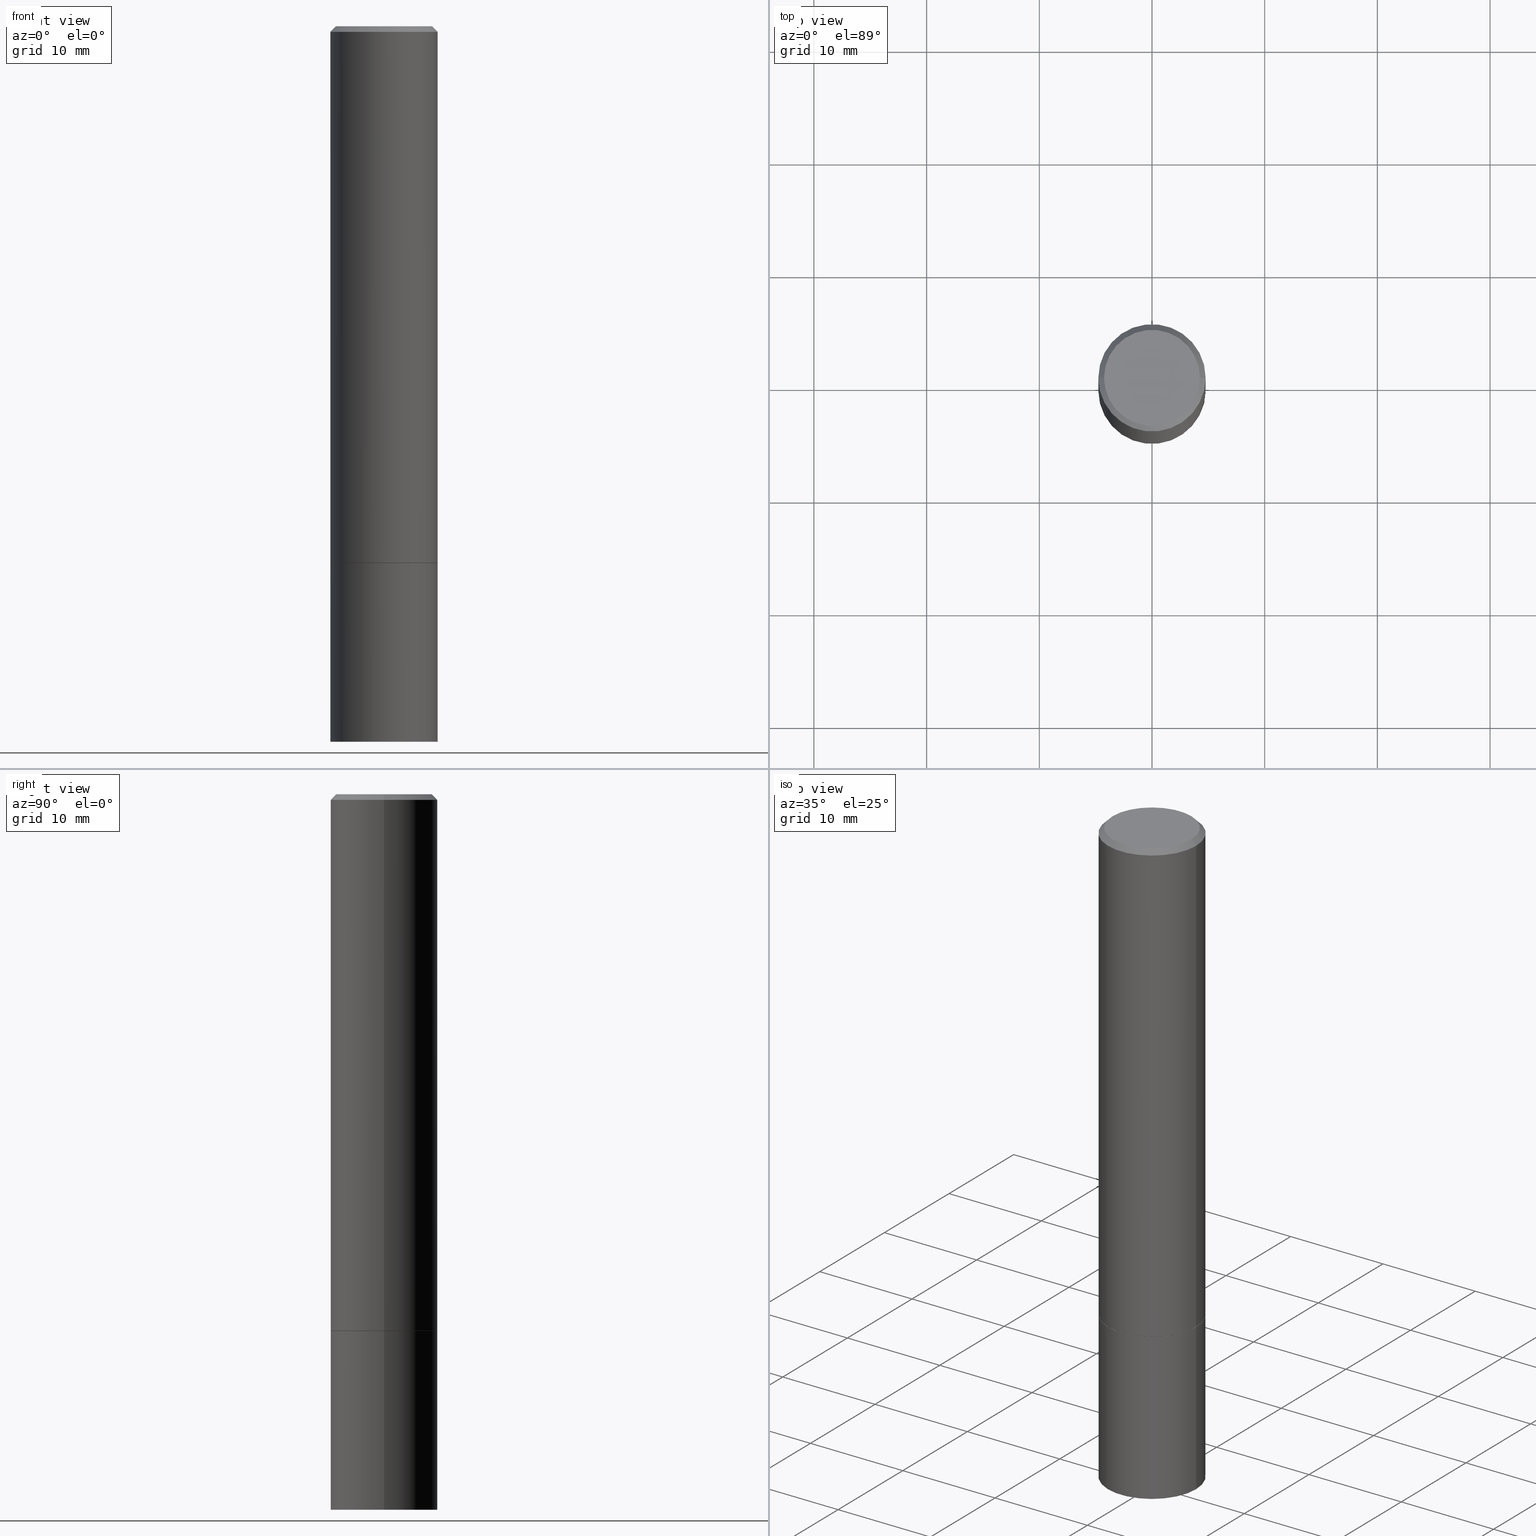
[diagram: canonical four-view strip — front | top / right | iso, engineering-drawing reading convention]
A machine part, canonical four-view strip (front | top / right | iso — engineering-drawing reading convention). The complete STEP part file that produces these views, byte-faithful:
ISO-10303-21;
HEADER;
FILE_DESCRIPTION (( 'STEP AP203' ),
    '1' );
FILE_NAME ('32662.STEP',
    '2022-04-27T15:46:39',
    ( '' ),
    ( '' ),
    'SwSTEP 2.0',
    'SolidWorks 2022',
    '' );
FILE_SCHEMA (( 'CONFIG_CONTROL_DESIGN' ));
ENDSEC;

DATA;
#1 = DIRECTION ( 'NONE',  ( -2.445468806185136597E-29, 3.491481338843145583E-15, 1.000000000000000000 ) ) ;
#2 = CARTESIAN_POINT ( 'NONE',  ( 6.105668424814365750E-29, -8.717276340833150111E-15, -2.496727175325960779 ) ) ;
#3 = EDGE_CURVE ( 'NONE', #307, #189, #246, .T. ) ;
#4 = EDGE_LOOP ( 'NONE', ( #146, #226, #37 ) ) ;
#5 = AXIS2_PLACEMENT_3D ( 'NONE', #350, #240, #379 ) ;
#6 = ORIENTED_EDGE ( 'NONE', *, *, #381, .T. ) ;
#7 = LINE ( 'NONE', #125, #324 ) ;
#8 = CALENDAR_DATE ( 2022, 27, 4 ) ;
#9 = DIRECTION ( 'NONE',  ( -2.445468806185136877E-29, 3.491481338843145188E-15, 1.000000000000000000 ) ) ;
#10 = AXIS2_PLACEMENT_3D ( 'NONE', #115, #242, #330 ) ;
#11 = COORDINATED_UNIVERSAL_TIME_OFFSET ( 5, 0, .BEHIND. ) ;
#12 =( NAMED_UNIT ( * ) SI_UNIT ( $, .STERADIAN. ) SOLID_ANGLE_UNIT ( ) );
#13 = DIRECTION ( 'NONE',  ( 1.000000000000000000, -6.982962677686265133E-15, 0.000000000000000000 ) ) ;
#14 = CYLINDRICAL_SURFACE ( 'NONE', #179, 0.1875000000000000278 ) ;
#15 = EDGE_LOOP ( 'NONE', ( #81, #32, #95 ) ) ;
#16 = CARTESIAN_POINT ( 'NONE',  ( 0.000000000000000000, 0.000000000000000000, 0.000000000000000000 ) ) ;
#17 = VECTOR ( 'NONE', #136, 39.37007874015748143 ) ;
#18 = EDGE_CURVE ( 'NONE', #119, #106, #156, .T. ) ;
#19 = CARTESIAN_POINT ( 'NONE',  ( 4.585254011597131119E-29, -6.546527510330898707E-15, -1.875000000000000000 ) ) ;
#20 = ORIENTED_EDGE ( 'NONE', *, *, #144, .F. ) ;
#21 = APPROVAL ( #103, 'UNSPECIFIED' ) ;
#22 = DIRECTION ( 'NONE',  ( 1.000000000000000000, -6.982962677686265922E-15, 4.876176775795935793E-29 ) ) ;
#23 = VERTEX_POINT ( 'NONE', #131 ) ;
#24 = DIRECTION ( 'NONE',  ( -2.445468806185136597E-29, 3.491481338843145583E-15, 1.000000000000000000 ) ) ;
#25 = AXIS2_PLACEMENT_3D ( 'NONE', #19, #138, #111 ) ;
#26 = DIRECTION ( 'NONE',  ( -0.7071067811865466846, 2.468850131082247989E-15, -0.7071067811865483499 ) ) ;
#27 = CYLINDRICAL_SURFACE ( 'NONE', #44, 0.1875000000000000278 ) ;
#28 = AXIS2_PLACEMENT_3D ( 'NONE', #258, #251, #231 ) ;
#29 = CARTESIAN_POINT ( 'NONE',  ( 0.000000000000000000, 0.000000000000000000, 0.000000000000000000 ) ) ;
#30 = EDGE_CURVE ( 'NONE', #23, #307, #224, .T. ) ;
#31 = AXIS2_PLACEMENT_3D ( 'NONE', #188, #1, #113 ) ;
#32 = ORIENTED_EDGE ( 'NONE', *, *, #274, .T. ) ;
#33 = EDGE_LOOP ( 'NONE', ( #169, #91 ) ) ;
#34 = ORIENTED_EDGE ( 'NONE', *, *, #289, .T. ) ;
#35 = DATE_TIME_ROLE ( 'classification_date' ) ;
#36 = PERSON_AND_ORGANIZATION_ROLE ( 'design_owner' ) ;
#37 = ORIENTED_EDGE ( 'NONE', *, *, #381, .F. ) ;
#38 = EDGE_CURVE ( 'NONE', #260, #171, #7, .T. ) ;
#39 = DATE_AND_TIME ( #132, #190 ) ;
#40 = DIRECTION ( 'NONE',  ( -2.445468806185136597E-29, 3.491481338843145583E-15, 1.000000000000000000 ) ) ;
#41 = PERSON_AND_ORGANIZATION ( #183, #236 ) ;
#42 = MECHANICAL_CONTEXT ( 'NONE', #313, 'mechanical' ) ;
#43 = DATE_AND_TIME ( #133, #225 ) ;
#44 = AXIS2_PLACEMENT_3D ( 'NONE', #29, #244, #148 ) ;
#45 = APPROVAL ( #168, 'UNSPECIFIED' ) ;
#46 = CARTESIAN_POINT ( 'NONE',  ( 0.000000000000000000, 0.000000000000000000, 0.000000000000000000 ) ) ;
#47 = DIRECTION ( 'NONE',  ( 1.000000000000000000, -6.982962677686266711E-15, 4.876176775795935793E-29 ) ) ;
#48 = VERTEX_POINT ( 'NONE', #2 ) ;
#49 = DIRECTION ( 'NONE',  ( -2.445468806185136597E-29, 3.491481338843145583E-15, 1.000000000000000000 ) ) ;
#50 = CIRCLE ( 'NONE', #255, 0.1865000000000000546 ) ;
#51 = CARTESIAN_POINT ( 'NONE',  ( 0.000000000000000000, 0.000000000000000000, 0.000000000000000000 ) ) ;
#52 = FACE_OUTER_BOUND ( 'NONE', #15, .T. ) ;
#53 = SECURITY_CLASSIFICATION ( '', '', #94 ) ;
#54 = DIRECTION ( 'NONE',  ( -1.000000000000000000, 6.982962677686268288E-15, 0.000000000000000000 ) ) ;
#55 = VECTOR ( 'NONE', #234, 39.37007874015748143 ) ;
#56 = PLANE ( 'NONE',  #98 ) ;
#57 = FACE_OUTER_BOUND ( 'NONE', #90, .T. ) ;
#58 = ADVANCED_FACE ( 'NONE', ( #250 ), #166, .F. ) ;
#59 = PRODUCT_DEFINITION_FORMATION_WITH_SPECIFIED_SOURCE ( 'ANY', '', #216, .NOT_KNOWN. ) ;
#60 = AXIS2_PLACEMENT_3D ( 'NONE', #116, #303, #147 ) ;
#61 = CARTESIAN_POINT ( 'NONE',  ( 0.1875000000000009992, -1.001504672169003342E-14, -2.500000000000000000 ) ) ;
#62 = EDGE_CURVE ( 'NONE', #307, #171, #388, .T. ) ;
#63 = DIRECTION ( 'NONE',  ( -1.000000000000000000, 6.982962677686268288E-15, 0.000000000000000000 ) ) ;
#64 = CLOSED_SHELL ( 'NONE', ( #76, #58, #87, #252, #160 ) ) ;
#65 = ORIENTED_EDGE ( 'NONE', *, *, #256, .F. ) ;
#66 = DIRECTION ( 'NONE',  ( -2.445468806185136877E-29, 3.491481338843145188E-15, 1.000000000000000000 ) ) ;
#67 = VERTEX_POINT ( 'NONE', #215 ) ;
#68 = DATE_AND_TIME ( #8, #229 ) ;
#69 = APPROVAL_DATE_TIME ( #68, #45 ) ;
#70 = DATE_AND_TIME ( #291, #184 ) ;
#71 = EDGE_CURVE ( 'NONE', #222, #189, #151, .T. ) ;
#72 = DIRECTION ( 'NONE',  ( 1.000000000000000000, 0.000000000000000000, 0.000000000000000000 ) ) ;
#73 = CC_DESIGN_PERSON_AND_ORGANIZATION_ASSIGNMENT ( #283, #192, ( #53 ) ) ;
#74 = DIRECTION ( 'NONE',  ( -1.000000000000000000, 6.982962677686265133E-15, 0.000000000000000000 ) ) ;
#75 = DIRECTION ( 'NONE',  ( -0.9998476951563912696, 6.920964387254060733E-15, -0.01745240643727649296 ) ) ;
#76 = ADVANCED_FACE ( 'NONE', ( #57 ), #27, .T. ) ;
#77 = EDGE_CURVE ( 'NONE', #260, #23, #50, .T. ) ;
#78 = FACE_OUTER_BOUND ( 'NONE', #335, .T. ) ;
#79 = ORIENTED_EDGE ( 'NONE', *, *, #164, .T. ) ;
#80 = CARTESIAN_POINT ( 'NONE',  ( 0.1874999999999999167, -1.309305502066174219E-15, 9.142831454617375408E-30 ) ) ;
#81 = ORIENTED_EDGE ( 'NONE', *, *, #174, .F. ) ;
#82 = DIRECTION ( 'NONE',  ( 1.000000000000000000, -6.982962677686265922E-15, 4.876176775795935793E-29 ) ) ;
#83 =( GEOMETRIC_REPRESENTATION_CONTEXT ( 3 ) GLOBAL_UNCERTAINTY_ASSIGNED_CONTEXT ( ( #343 ) ) GLOBAL_UNIT_ASSIGNED_CONTEXT ( ( #165, #312, #12 ) ) REPRESENTATION_CONTEXT ( 'NONE', 'WORKASPACE' ) );
#84 = CARTESIAN_POINT ( 'NONE',  ( -0.1874999999999997780, 1.239475875289310330E-15, -0.02000000000000004205 ) ) ;
#85 = VECTOR ( 'NONE', #348, 39.37007874015748143 ) ;
#86 = CARTESIAN_POINT ( 'NONE',  ( 4.585254011597131119E-29, -6.546527510330898707E-15, -1.875000000000000000 ) ) ;
#87 = ADVANCED_FACE ( 'NONE', ( #52 ), #306, .F. ) ;
#88 = CARTESIAN_POINT ( 'NONE',  ( 0.1875000000000000278, -7.855833012397073715E-15, -1.875000000000000000 ) ) ;
#89 = CC_DESIGN_DATE_AND_TIME_ASSIGNMENT ( #70, #284, ( #277 ) ) ;
#90 = EDGE_LOOP ( 'NONE', ( #142, #34, #93, #220 ) ) ;
#91 = ORIENTED_EDGE ( 'NONE', *, *, #245, .F. ) ;
#92 = DATE_AND_TIME ( #253, #345 ) ;
#93 = ORIENTED_EDGE ( 'NONE', *, *, #204, .F. ) ;
#94 = SECURITY_CLASSIFICATION_LEVEL ( 'unclassified' ) ;
#95 = ORIENTED_EDGE ( 'NONE', *, *, #152, .F. ) ;
#96 = ADVANCED_FACE ( 'NONE', ( #118 ), #56, .F. ) ;
#97 = APPROVAL_STATUS ( 'not_yet_approved' ) ;
#98 = AXIS2_PLACEMENT_3D ( 'NONE', #186, #389, #82 ) ;
#99 = APPROVAL_ROLE ( '' ) ;
#100 = CARTESIAN_POINT ( 'NONE',  ( 0.000000000000000000, 0.000000000000000000, 0.000000000000000000 ) ) ;
#101 = APPROVAL_PERSON_ORGANIZATION ( #342, #21, #99 ) ;
#102 = CARTESIAN_POINT ( 'NONE',  ( -0.1875000000000000278, 1.332267629550188046E-15, -9.223003294227947991E-30 ) ) ;
#103 = APPROVAL_STATUS ( 'not_yet_approved' ) ;
#104 = CIRCLE ( 'NONE', #360, 0.1875000000000000555 ) ;
#105 = DIRECTION ( 'NONE',  ( -2.445468806185136597E-29, 3.491481338843145583E-15, 1.000000000000000000 ) ) ;
#106 = VERTEX_POINT ( 'NONE', #88 ) ;
#107 = LINE ( 'NONE', #80, #85 ) ;
#108 = ORIENTED_EDGE ( 'NONE', *, *, #144, .T. ) ;
#109 = DIRECTION ( 'NONE',  ( -2.445468806185136597E-29, 3.491481338843145583E-15, 1.000000000000000000 ) ) ;
#110 = CIRCLE ( 'NONE', #163, 0.1674999999999997879 ) ;
#111 = DIRECTION ( 'NONE',  ( 1.000000000000000000, -6.982962677686266711E-15, 0.000000000000000000 ) ) ;
#112 = AXIS2_PLACEMENT_3D ( 'NONE', #363, #334, #63 ) ;
#113 = DIRECTION ( 'NONE',  ( 1.000000000000000000, -6.982962677686265922E-15, 0.000000000000000000 ) ) ;
#114 = CC_DESIGN_PERSON_AND_ORGANIZATION_ASSIGNMENT ( #372, #281, ( #59 ) ) ;
#115 = CARTESIAN_POINT ( 'NONE',  ( 4.890937612370283668E-31, -6.982962677686305168E-17, -0.02000000000000004205 ) ) ;
#116 = CARTESIAN_POINT ( 'NONE',  ( 4.890937612370283668E-31, -6.982962677686305168E-17, -0.02000000000000004205 ) ) ;
#117 = ADVANCED_FACE ( 'NONE', ( #217 ), #355, .T. ) ;
#118 = FACE_OUTER_BOUND ( 'NONE', #33, .T. ) ;
#119 = VERTEX_POINT ( 'NONE', #61 ) ;
#120 = ORIENTED_EDGE ( 'NONE', *, *, #354, .F. ) ;
#121 = CIRCLE ( 'NONE', #25, 0.1875000000000000278 ) ;
#122 = VERTEX_POINT ( 'NONE', #149 ) ;
#123 = COORDINATED_UNIVERSAL_TIME_OFFSET ( 5, 0, .BEHIND. ) ;
#124 = PRODUCT_RELATED_PRODUCT_CATEGORY ( 'detail', '', ( #216 ) ) ;
#125 = CARTESIAN_POINT ( 'NONE',  ( 0.1865000000000000546, -7.848850049719386123E-15, -1.874999999999999778 ) ) ;
#126 = APPROVAL_ROLE ( '' ) ;
#127 = PERSON_AND_ORGANIZATION ( #183, #236 ) ;
#128 = DESIGN_CONTEXT ( 'detailed design', #368, 'design' ) ;
#129 = ADVANCED_FACE ( 'NONE', ( #387 ), #333, .T. ) ;
#130 = AXIS2_PLACEMENT_3D ( 'NONE', #299, #24, #357 ) ;
#131 = CARTESIAN_POINT ( 'NONE',  ( -0.1865000000000000546, -5.216066853790089465E-15, -1.874999999999999778 ) ) ;
#132 = CALENDAR_DATE ( 2022, 27, 4 ) ;
#133 = CALENDAR_DATE ( 2022, 27, 4 ) ;
#134 = EDGE_CURVE ( 'NONE', #139, #222, #110, .T. ) ;
#135 = AXIS2_PLACEMENT_3D ( 'NONE', #362, #331, #54 ) ;
#136 = DIRECTION ( 'NONE',  ( 0.7071067811865466846, -7.319954787623252890E-15, -0.7071067811865483499 ) ) ;
#137 = AXIS2_PLACEMENT_3D ( 'NONE', #197, #40, #13 ) ;
#138 = DIRECTION ( 'NONE',  ( -2.445468806185136597E-29, 3.491481338843145583E-15, 1.000000000000000000 ) ) ;
#139 = VERTEX_POINT ( 'NONE', #326 ) ;
#140 = AXIS2_PLACEMENT_3D ( 'NONE', #51, #230, #22 ) ;
#141 = DIRECTION ( 'NONE',  ( -1.000000000000000000, 6.982962677686265922E-15, -4.876176775795935793E-29 ) ) ;
#142 = ORIENTED_EDGE ( 'NONE', *, *, #152, .T. ) ;
#143 = CARTESIAN_POINT ( 'NONE',  ( 0.000000000000000000, 0.000000000000000000, 0.000000000000000000 ) ) ;
#144 = EDGE_CURVE ( 'NONE', #67, #106, #288, .T. ) ;
#145 = DIRECTION ( 'NONE',  ( 1.000000000000000000, -6.982962677686265922E-15, 4.876176775795935793E-29 ) ) ;
#146 = ORIENTED_EDGE ( 'NONE', *, *, #274, .F. ) ;
#147 = DIRECTION ( 'NONE',  ( -1.000000000000000000, 6.982962677686265133E-15, 0.000000000000000000 ) ) ;
#148 = DIRECTION ( 'NONE',  ( 1.000000000000000000, -6.982962677686265922E-15, 4.876176775795935793E-29 ) ) ;
#149 = CARTESIAN_POINT ( 'NONE',  ( 0.1874999999999997780, -1.356173001359023691E-15, -0.02000000000000004205 ) ) ;
#150 = CIRCLE ( 'NONE', #28, 0.1875000000000000278 ) ;
#151 = LINE ( 'NONE', #84, #268 ) ;
#152 = EDGE_CURVE ( 'NONE', #119, #161, #219, .T. ) ;
#153 = DIRECTION ( 'NONE',  ( 0.7071067811866199593, -2.468850131083015945E-15, 0.7071067811864750752 ) ) ;
#154 = ORIENTED_EDGE ( 'NONE', *, *, #256, .T. ) ;
#155 = APPROVAL_PERSON_ORGANIZATION ( #223, #199, #126 ) ;
#156 = LINE ( 'NONE', #249, #187 ) ;
#157 = CIRCLE ( 'NONE', #5, 0.1865000000000000546 ) ;
#158 = ORIENTED_EDGE ( 'NONE', *, *, #325, .F. ) ;
#159 = APPROVAL_DATE_TIME ( #43, #21 ) ;
#160 = ADVANCED_FACE ( 'NONE', ( #328 ), #212, .F. ) ;
#161 = VERTEX_POINT ( 'NONE', #270 ) ;
#162 = PERSON_AND_ORGANIZATION ( #183, #236 ) ;
#163 = AXIS2_PLACEMENT_3D ( 'NONE', #241, #390, #305 ) ;
#164 = EDGE_CURVE ( 'NONE', #189, #122, #185, .T. ) ;
#165 =( CONVERSION_BASED_UNIT ( 'INCH', #375 ) LENGTH_UNIT ( ) NAMED_UNIT ( #295 ) );
#166 = CONICAL_SURFACE ( 'NONE', #112, 2255.510300424507022, 1.553343034274960344 ) ;
#167 = FACE_OUTER_BOUND ( 'NONE', #297, .T. ) ;
#168 = APPROVAL_STATUS ( 'not_yet_approved' ) ;
#169 = ORIENTED_EDGE ( 'NONE', *, *, #77, .F. ) ;
#170 = LINE ( 'NONE', #293, #17 ) ;
#171 = VERTEX_POINT ( 'NONE', #359 ) ;
#172 = CARTESIAN_POINT ( 'NONE',  ( 4.582808542790945516E-29, -6.543036028992054911E-15, -1.874000000000000110 ) ) ;
#173 = ORIENTED_EDGE ( 'NONE', *, *, #38, .T. ) ;
#174 = EDGE_CURVE ( 'NONE', #48, #119, #243, .T. ) ;
#175 = CYLINDRICAL_SURFACE ( 'NONE', #300, 0.1874999999999999167 ) ;
#176 = ORIENTED_EDGE ( 'NONE', *, *, #38, .F. ) ;
#177 = DIRECTION ( 'NONE',  ( 1.000000000000000000, -6.982962677686266711E-15, 0.000000000000000000 ) ) ;
#178 = DIRECTION ( 'NONE',  ( 2.438088387897960049E-29, -3.491481338843145188E-15, -1.000000000000000000 ) ) ;
#179 = AXIS2_PLACEMENT_3D ( 'NONE', #143, #105, #257 ) ;
#180 = CARTESIAN_POINT ( 'NONE',  ( 1.309305502066220959E-15, 0.1874999999999934497, -1.875000000000000666 ) ) ;
#181 = DIRECTION ( 'NONE',  ( 1.000000000000000000, -6.982962677686265922E-15, 0.000000000000000000 ) ) ;
#182 = ADVANCED_FACE ( 'NONE', ( #78 ), #232, .T. ) ;
#183 = PERSON ( 'UNSPECIFIED', 'UNSPECIFIED', 'UNSPECIFIED', ('UNSPECIFIED'), ('UNSPECIFIED'), ('UNSPECIFIED') ) ;
#184 = LOCAL_TIME ( 11, 46, 39.00000000000000000, #287 ) ;
#185 = CIRCLE ( 'NONE', #10, 0.1874999999999997780 ) ;
#186 = CARTESIAN_POINT ( 'NONE',  ( 4.585254011597131119E-29, -6.546527510330898707E-15, -1.875000000000000000 ) ) ;
#187 = VECTOR ( 'NONE', #66, 39.37007874015748143 ) ;
#188 = CARTESIAN_POINT ( 'NONE',  ( 4.582808542790945516E-29, -6.543036028992054911E-15, -1.874000000000000110 ) ) ;
#189 = VERTEX_POINT ( 'NONE', #200 ) ;
#190 = LOCAL_TIME ( 11, 46, 39.00000000000000000, #123 ) ;
#191 = EDGE_LOOP ( 'NONE', ( #366, #209 ) ) ;
#192 = PERSON_AND_ORGANIZATION_ROLE ( 'classification_officer' ) ;
#193 = APPROVAL_ROLE ( '' ) ;
#194 = AXIS2_PLACEMENT_3D ( 'NONE', #46, #292, #47 ) ;
#195 = ORIENTED_EDGE ( 'NONE', *, *, #3, .F. ) ;
#196 = APPLICATION_PROTOCOL_DEFINITION ( 'international standard', 'config_control_design', 1994, #368 ) ;
#197 = CARTESIAN_POINT ( 'NONE',  ( 4.890937612370283668E-31, -6.982962677686305168E-17, -0.02000000000000004205 ) ) ;
#198 = DIRECTION ( 'NONE',  ( -2.445468806185136597E-29, 3.491481338843145583E-15, 1.000000000000000000 ) ) ;
#199 = APPROVAL ( #97, 'UNSPECIFIED' ) ;
#200 = CARTESIAN_POINT ( 'NONE',  ( -0.1874999999999997780, 1.239475875289310330E-15, -0.02000000000000004205 ) ) ;
#201 = EDGE_LOOP ( 'NONE', ( #195, #319, #154, #247 ) ) ;
#202 = CIRCLE ( 'NONE', #137, 0.1874999999999997780 ) ;
#203 = FACE_OUTER_BOUND ( 'NONE', #191, .T. ) ;
#204 = EDGE_CURVE ( 'NONE', #106, #67, #121, .T. ) ;
#205 = ORIENTED_EDGE ( 'NONE', *, *, #371, .T. ) ;
#206 = PRODUCT_DEFINITION_SHAPE ( 'NONE', 'NONE',  #277 ) ;
#207 = CARTESIAN_POINT ( 'NONE',  ( 0.1865000000000000546, -7.848850049719386123E-15, -1.874999999999999778 ) ) ;
#208 = VECTOR ( 'NONE', #9, 39.37007874015748143 ) ;
#209 = ORIENTED_EDGE ( 'NONE', *, *, #134, .T. ) ;
#210 = ADVANCED_FACE ( 'NONE', ( #386 ), #175, .T. ) ;
#211 = ORIENTED_EDGE ( 'NONE', *, *, #204, .T. ) ;
#212 = PLANE ( 'NONE',  #352 ) ;
#213 = CARTESIAN_POINT ( 'NONE',  ( 4.585254011597130558E-29, -6.546527510330897918E-15, -1.874999999999999778 ) ) ;
#214 = CIRCLE ( 'NONE', #194, 0.1674999999999997879 ) ;
#215 = CARTESIAN_POINT ( 'NONE',  ( -0.1875000000000000278, -6.305347799169194765E-15, -1.875000000000000000 ) ) ;
#216 = PRODUCT ( '32662', '32662', '', ( #42 ) ) ;
#217 = FACE_OUTER_BOUND ( 'NONE', #294, .T. ) ;
#218 = ADVANCED_FACE ( 'NONE', ( #203 ), #259, .F. ) ;
#219 = CIRCLE ( 'NONE', #130, 0.1875000000000000278 ) ;
#220 = ORIENTED_EDGE ( 'NONE', *, *, #18, .F. ) ;
#221 = VECTOR ( 'NONE', #336, 39.37007874015748143 ) ;
#222 = VERTEX_POINT ( 'NONE', #376 ) ;
#223 = PERSON_AND_ORGANIZATION ( #183, #236 ) ;
#224 = LINE ( 'NONE', #276, #221 ) ;
#225 = LOCAL_TIME ( 11, 46, 39.00000000000000000, #317 ) ;
#226 = ORIENTED_EDGE ( 'NONE', *, *, #174, .T. ) ;
#227 = PERSON_AND_ORGANIZATION_ROLE ( 'creator' ) ;
#228 = DIRECTION ( 'NONE',  ( 0.000000000000000000, 0.000000000000000000, 1.000000000000000000 ) ) ;
#229 = LOCAL_TIME ( 11, 46, 39.00000000000000000, #11 ) ;
#230 = DIRECTION ( 'NONE',  ( -2.445468806185136597E-29, 3.491481338843145583E-15, 1.000000000000000000 ) ) ;
#231 = DIRECTION ( 'NONE',  ( 1.000000000000000000, -6.982962677686266711E-15, 0.000000000000000000 ) ) ;
#232 = CONICAL_SURFACE ( 'NONE', #311, 0.1865000000000000546, 0.7853981633975507526 ) ;
#233 = CARTESIAN_POINT ( 'NONE',  ( 1.169646248512448215E-15, 0.1674999999999997879, -5.848231242562260795E-16 ) ) ;
#234 = DIRECTION ( 'NONE',  ( -2.445468806185136877E-29, 3.491481338843145188E-15, 1.000000000000000000 ) ) ;
#235 = ORIENTED_EDGE ( 'NONE', *, *, #30, .T. ) ;
#236 = ORGANIZATION ( 'UNSPECIFIED', 'UNSPECIFIED', '' ) ;
#237 = VECTOR ( 'NONE', #238, 39.37007874015748143 ) ;
#238 = DIRECTION ( 'NONE',  ( 0.9998476951563912696, -6.920387862090559512E-15, -0.01745240643727649296 ) ) ;
#239 = CC_DESIGN_PERSON_AND_ORGANIZATION_ASSIGNMENT ( #341, #36, ( #216 ) ) ;
#240 = DIRECTION ( 'NONE',  ( -2.445468806185136597E-29, 3.491481338843145583E-15, 1.000000000000000000 ) ) ;
#241 = CARTESIAN_POINT ( 'NONE',  ( 0.000000000000000000, 0.000000000000000000, 0.000000000000000000 ) ) ;
#242 = DIRECTION ( 'NONE',  ( -2.445468806185136597E-29, 3.491481338843145583E-15, 1.000000000000000000 ) ) ;
#243 = LINE ( 'NONE', #361, #237 ) ;
#244 = DIRECTION ( 'NONE',  ( -2.445468806185136597E-29, 3.491481338843145583E-15, 1.000000000000000000 ) ) ;
#245 = EDGE_CURVE ( 'NONE', #23, #260, #157, .T. ) ;
#246 = LINE ( 'NONE', #309, #208 ) ;
#247 = ORIENTED_EDGE ( 'NONE', *, *, #164, .F. ) ;
#248 = SHAPE_DEFINITION_REPRESENTATION ( #206, #339 ) ;
#249 = CARTESIAN_POINT ( 'NONE',  ( 0.1875000000000000278, -1.309305502066175008E-15, 9.142831454617381013E-30 ) ) ;
#250 = FACE_OUTER_BOUND ( 'NONE', #4, .T. ) ;
#251 = DIRECTION ( 'NONE',  ( -2.445468806185136597E-29, 3.491481338843145583E-15, 1.000000000000000000 ) ) ;
#252 = ADVANCED_FACE ( 'NONE', ( #167 ), #14, .T. ) ;
#253 = CALENDAR_DATE ( 2022, 27, 4 ) ;
#254 =( LENGTH_UNIT ( ) NAMED_UNIT ( * ) SI_UNIT ( $, .METRE. ) );
#255 = AXIS2_PLACEMENT_3D ( 'NONE', #213, #302, #267 ) ;
#256 = EDGE_CURVE ( 'NONE', #171, #122, #107, .T. ) ;
#257 = DIRECTION ( 'NONE',  ( 1.000000000000000000, -6.982962677686265922E-15, 4.876176775795935793E-29 ) ) ;
#258 = CARTESIAN_POINT ( 'NONE',  ( 6.113672015462842613E-29, -8.728703347107864943E-15, -2.500000000000000000 ) ) ;
#259 = PLANE ( 'NONE',  #329 ) ;
#260 = VERTEX_POINT ( 'NONE', #207 ) ;
#261 = CONICAL_SURFACE ( 'NONE', #377, 0.1874999999999997780, 0.7853981633974471688 ) ;
#262 = LINE ( 'NONE', #102, #55 ) ;
#263 = ORIENTED_EDGE ( 'NONE', *, *, #62, .F. ) ;
#264 = DIRECTION ( 'NONE',  ( 1.000000000000000000, -6.982962677686265922E-15, 0.000000000000000000 ) ) ;
#265 = CARTESIAN_POINT ( 'NONE',  ( -0.1875000000000000555, -1.974165198334268889E-15, -1.874000000000000110 ) ) ;
#266 = EDGE_LOOP ( 'NONE', ( #211, #108 ) ) ;
#267 = DIRECTION ( 'NONE',  ( 1.000000000000000000, -6.982962677686265922E-15, 0.000000000000000000 ) ) ;
#268 = VECTOR ( 'NONE', #26, 39.37007874015748143 ) ;
#269 = AXIS2_PLACEMENT_3D ( 'NONE', #332, #273, #181 ) ;
#270 = CARTESIAN_POINT ( 'NONE',  ( -0.1875000000000009992, -7.419397845041682046E-15, -2.500000000000000000 ) ) ;
#271 = CC_DESIGN_DATE_AND_TIME_ASSIGNMENT ( #39, #35, ( #53 ) ) ;
#272 = APPROVAL_PERSON_ORGANIZATION ( #127, #45, #193 ) ;
#273 = DIRECTION ( 'NONE',  ( -2.445468806185136597E-29, 3.491481338843145583E-15, 1.000000000000000000 ) ) ;
#274 = EDGE_CURVE ( 'NONE', #48, #161, #298, .T. ) ;
#275 = DIRECTION ( 'NONE',  ( -2.445468806185136597E-29, 3.491481338843145583E-15, 1.000000000000000000 ) ) ;
#276 = CARTESIAN_POINT ( 'NONE',  ( -0.1865000000000000546, -5.221365308138310289E-15, -1.874999999999999778 ) ) ;
#277 = PRODUCT_DEFINITION ( 'UNKNOWN', '', #59, #128 ) ;
#278 = EDGE_LOOP ( 'NONE', ( #356, #378, #205, #314 ) ) ;
#279 = CC_DESIGN_APPROVAL ( #21, ( #277 ) ) ;
#280 = ORIENTED_EDGE ( 'NONE', *, *, #18, .T. ) ;
#281 = PERSON_AND_ORGANIZATION_ROLE ( 'creator' ) ;
#282 = ORIENTED_EDGE ( 'NONE', *, *, #245, .T. ) ;
#283 = PERSON_AND_ORGANIZATION ( #183, #236 ) ;
#284 = DATE_TIME_ROLE ( 'creation_date' ) ;
#285 = ORIENTED_EDGE ( 'NONE', *, *, #338, .F. ) ;
#286 = CC_DESIGN_SECURITY_CLASSIFICATION ( #53, ( #59 ) ) ;
#287 = COORDINATED_UNIVERSAL_TIME_OFFSET ( 5, 0, .BEHIND. ) ;
#288 = CIRCLE ( 'NONE', #385, 0.1875000000000000278 ) ;
#289 = EDGE_CURVE ( 'NONE', #161, #67, #262, .T. ) ;
#290 = CLOSED_SHELL ( 'NONE', ( #182, #210, #316, #129, #304, #117, #96, #218 ) ) ;
#291 = CALENDAR_DATE ( 2022, 27, 4 ) ;
#292 = DIRECTION ( 'NONE',  ( -2.445468806185136597E-29, 3.491481338843145583E-15, 1.000000000000000000 ) ) ;
#293 = CARTESIAN_POINT ( 'NONE',  ( 0.1874999999999997780, -1.356173001359023691E-15, -0.02000000000000004205 ) ) ;
#294 = EDGE_LOOP ( 'NONE', ( #321, #282, #173, #263 ) ) ;
#295 = DIMENSIONAL_EXPONENTS ( 1.000000000000000000, 0.000000000000000000, 0.000000000000000000, 0.000000000000000000, 0.000000000000000000, 0.000000000000000000, 0.000000000000000000 ) ;
#296 = CYLINDRICAL_SURFACE ( 'NONE', #140, 0.1874999999999999167 ) ;
#297 = EDGE_LOOP ( 'NONE', ( #365, #6, #280, #20 ) ) ;
#298 = LINE ( 'NONE', #322, #347 ) ;
#299 = CARTESIAN_POINT ( 'NONE',  ( 6.113672015462842613E-29, -8.728703347107864943E-15, -2.500000000000000000 ) ) ;
#300 = AXIS2_PLACEMENT_3D ( 'NONE', #16, #109, #145 ) ;
#301 = DIRECTION ( 'NONE',  ( -1.000000000000000000, 6.982962677686265922E-15, -4.876176775795935793E-29 ) ) ;
#302 = DIRECTION ( 'NONE',  ( -2.445468806185136597E-29, 3.491481338843145583E-15, 1.000000000000000000 ) ) ;
#303 = DIRECTION ( 'NONE',  ( 2.445468806185136597E-29, -3.491481338843145583E-15, -1.000000000000000000 ) ) ;
#304 = ADVANCED_FACE ( 'NONE', ( #323 ), #296, .T. ) ;
#305 = DIRECTION ( 'NONE',  ( 1.000000000000000000, -6.982962677686266711E-15, 4.876176775795935793E-29 ) ) ;
#306 = CONICAL_SURFACE ( 'NONE', #135, 2255.510300424507022, 1.553343034274960344 ) ;
#307 = VERTEX_POINT ( 'NONE', #265 ) ;
#308 = EDGE_LOOP ( 'NONE', ( #384, #351, #364, #65 ) ) ;
#309 = CARTESIAN_POINT ( 'NONE',  ( -0.1874999999999999167, 1.332267629550187257E-15, -9.223003294227943787E-30 ) ) ;
#310 = CC_DESIGN_PERSON_AND_ORGANIZATION_ASSIGNMENT ( #41, #367, ( #59 ) ) ;
#311 = AXIS2_PLACEMENT_3D ( 'NONE', #382, #49, #264 ) ;
#312 =( NAMED_UNIT ( * ) PLANE_ANGLE_UNIT ( ) SI_UNIT ( $, .RADIAN. ) );
#313 = APPLICATION_CONTEXT ( 'configuration controlled 3d designs of mechanical parts and assemblies' ) ;
#314 = ORIENTED_EDGE ( 'NONE', *, *, #71, .F. ) ;
#315 = APPROVAL_DATE_TIME ( #92, #199 ) ;
#316 = ADVANCED_FACE ( 'NONE', ( #374 ), #261, .T. ) ;
#317 = COORDINATED_UNIVERSAL_TIME_OFFSET ( 5, 0, .BEHIND. ) ;
#318 = DIRECTION ( 'NONE',  ( 1.000000000000000000, -6.982962677686265922E-15, 0.000000000000000000 ) ) ;
#319 = ORIENTED_EDGE ( 'NONE', *, *, #62, .T. ) ;
#320 = DIRECTION ( 'NONE',  ( 2.445468806185136597E-29, -3.491481338843145583E-15, -1.000000000000000000 ) ) ;
#321 = ORIENTED_EDGE ( 'NONE', *, *, #30, .F. ) ;
#322 = CARTESIAN_POINT ( 'NONE',  ( 6.105668424814365750E-29, -8.717276340833150111E-15, -2.496727175325960779 ) ) ;
#323 = FACE_OUTER_BOUND ( 'NONE', #201, .T. ) ;
#324 = VECTOR ( 'NONE', #153, 39.37007874015748143 ) ;
#325 = EDGE_CURVE ( 'NONE', #171, #307, #104, .T. ) ;
#326 = CARTESIAN_POINT ( 'NONE',  ( 0.1674999999999997879, -1.252653207992876908E-15, 8.469775550109228175E-30 ) ) ;
#327 = CC_DESIGN_APPROVAL ( #45, ( #59 ) ) ;
#328 = FACE_OUTER_BOUND ( 'NONE', #266, .T. ) ;
#329 = AXIS2_PLACEMENT_3D ( 'NONE', #233, #353, #141 ) ;
#330 = DIRECTION ( 'NONE',  ( 1.000000000000000000, -6.982962677686265133E-15, 0.000000000000000000 ) ) ;
#331 = DIRECTION ( 'NONE',  ( 2.445468806185136597E-29, -3.491481338843145583E-15, -1.000000000000000000 ) ) ;
#332 = CARTESIAN_POINT ( 'NONE',  ( 4.585254011597130558E-29, -6.546527510330897918E-15, -1.874999999999999778 ) ) ;
#333 = CONICAL_SURFACE ( 'NONE', #60, 0.1874999999999997780, 0.7853981633974471688 ) ;
#334 = DIRECTION ( 'NONE',  ( 2.445468806185136597E-29, -3.491481338843145583E-15, -1.000000000000000000 ) ) ;
#335 = EDGE_LOOP ( 'NONE', ( #337, #235, #158, #176 ) ) ;
#336 = DIRECTION ( 'NONE',  ( -0.7071067811866199593, 7.493145998870616062E-15, 0.7071067811864750752 ) ) ;
#337 = ORIENTED_EDGE ( 'NONE', *, *, #77, .T. ) ;
#338 = EDGE_CURVE ( 'NONE', #222, #139, #214, .T. ) ;
#339 = ADVANCED_BREP_SHAPE_REPRESENTATION ( '32662', ( #370, #369, #383 ), #83 ) ;
#340 = COORDINATED_UNIVERSAL_TIME_OFFSET ( 5, 0, .BEHIND. ) ;
#341 = PERSON_AND_ORGANIZATION ( #183, #236 ) ;
#342 = PERSON_AND_ORGANIZATION ( #183, #236 ) ;
#343 = UNCERTAINTY_MEASURE_WITH_UNIT (LENGTH_MEASURE( 1.000000000000000082E-05 ), #165, 'distance_accuracy_value', 'NONE');
#344 = CC_DESIGN_PERSON_AND_ORGANIZATION_ASSIGNMENT ( #162, #227, ( #277 ) ) ;
#345 = LOCAL_TIME ( 11, 46, 39.00000000000000000, #340 ) ;
#346 = CARTESIAN_POINT ( 'NONE',  ( 4.890937612370283668E-31, -6.982962677686305168E-17, -0.02000000000000004205 ) ) ;
#347 = VECTOR ( 'NONE', #75, 39.37007874015748143 ) ;
#348 = DIRECTION ( 'NONE',  ( -2.445468806185136877E-29, 3.491481338843145188E-15, 1.000000000000000000 ) ) ;
#349 = ORIENTED_EDGE ( 'NONE', *, *, #71, .T. ) ;
#350 = CARTESIAN_POINT ( 'NONE',  ( 4.585254011597130558E-29, -6.546527510330897918E-15, -1.874999999999999778 ) ) ;
#351 = ORIENTED_EDGE ( 'NONE', *, *, #3, .T. ) ;
#352 = AXIS2_PLACEMENT_3D ( 'NONE', #180, #178, #301 ) ;
#353 = DIRECTION ( 'NONE',  ( 2.438088387897960049E-29, -3.491481338843145188E-15, -1.000000000000000000 ) ) ;
#354 = EDGE_CURVE ( 'NONE', #139, #122, #170, .T. ) ;
#355 = CONICAL_SURFACE ( 'NONE', #269, 0.1865000000000000546, 0.7853981633975507526 ) ;
#356 = ORIENTED_EDGE ( 'NONE', *, *, #134, .F. ) ;
#357 = DIRECTION ( 'NONE',  ( 1.000000000000000000, -6.982962677686266711E-15, 0.000000000000000000 ) ) ;
#358 = CC_DESIGN_APPROVAL ( #199, ( #53 ) ) ;
#359 = CARTESIAN_POINT ( 'NONE',  ( 0.1875000000000000555, -7.852341531058230708E-15, -1.874000000000000110 ) ) ;
#360 = AXIS2_PLACEMENT_3D ( 'NONE', #172, #198, #318 ) ;
#361 = CARTESIAN_POINT ( 'NONE',  ( 6.105668424814365750E-29, -8.717276340833150111E-15, -2.496727175325960779 ) ) ;
#362 = CARTESIAN_POINT ( 'NONE',  ( 1.023839678809221063E-27, -1.461771715708782654E-13, -41.86680591548343955 ) ) ;
#363 = CARTESIAN_POINT ( 'NONE',  ( 1.023839678809221063E-27, -1.461771715708782654E-13, -41.86680591548343955 ) ) ;
#364 = ORIENTED_EDGE ( 'NONE', *, *, #371, .F. ) ;
#365 = ORIENTED_EDGE ( 'NONE', *, *, #289, .F. ) ;
#366 = ORIENTED_EDGE ( 'NONE', *, *, #338, .T. ) ;
#367 = PERSON_AND_ORGANIZATION_ROLE ( 'design_supplier' ) ;
#368 = APPLICATION_CONTEXT ( 'configuration controlled 3d designs of mechanical parts and assemblies' ) ;
#369 = MANIFOLD_SOLID_BREP ( 'Body-Move/Copy2[2]', #290 ) ;
#370 = MANIFOLD_SOLID_BREP ( 'Body-Move/Copy2[1]', #64 ) ;
#371 = EDGE_CURVE ( 'NONE', #122, #189, #202, .T. ) ;
#372 = PERSON_AND_ORGANIZATION ( #183, #236 ) ;
#373 = APPLICATION_PROTOCOL_DEFINITION ( 'international standard', 'config_control_design', 1994, #313 ) ;
#374 = FACE_OUTER_BOUND ( 'NONE', #278, .T. ) ;
#375 = LENGTH_MEASURE_WITH_UNIT ( LENGTH_MEASURE( 0.02539999999999999897 ), #254 );
#376 = CARTESIAN_POINT ( 'NONE',  ( -0.1674999999999997879, 1.204561061900879272E-15, -8.301862719484101980E-30 ) ) ;
#377 = AXIS2_PLACEMENT_3D ( 'NONE', #346, #320, #74 ) ;
#378 = ORIENTED_EDGE ( 'NONE', *, *, #354, .T. ) ;
#379 = DIRECTION ( 'NONE',  ( 1.000000000000000000, -6.982962677686265922E-15, 0.000000000000000000 ) ) ;
#380 = EDGE_LOOP ( 'NONE', ( #120, #285, #349, #79 ) ) ;
#381 = EDGE_CURVE ( 'NONE', #161, #119, #150, .T. ) ;
#382 = CARTESIAN_POINT ( 'NONE',  ( 4.585254011597130558E-29, -6.546527510330897918E-15, -1.874999999999999778 ) ) ;
#383 = AXIS2_PLACEMENT_3D ( 'NONE', #100, #228, #72 ) ;
#384 = ORIENTED_EDGE ( 'NONE', *, *, #325, .T. ) ;
#385 = AXIS2_PLACEMENT_3D ( 'NONE', #86, #275, #177 ) ;
#386 = FACE_OUTER_BOUND ( 'NONE', #308, .T. ) ;
#387 = FACE_OUTER_BOUND ( 'NONE', #380, .T. ) ;
#388 = CIRCLE ( 'NONE', #31, 0.1875000000000000555 ) ;
#389 = DIRECTION ( 'NONE',  ( -2.438088387897960049E-29, 3.491481338843145188E-15, 1.000000000000000000 ) ) ;
#390 = DIRECTION ( 'NONE',  ( -2.445468806185136597E-29, 3.491481338843145583E-15, 1.000000000000000000 ) ) ;
ENDSEC;
END-ISO-10303-21;
